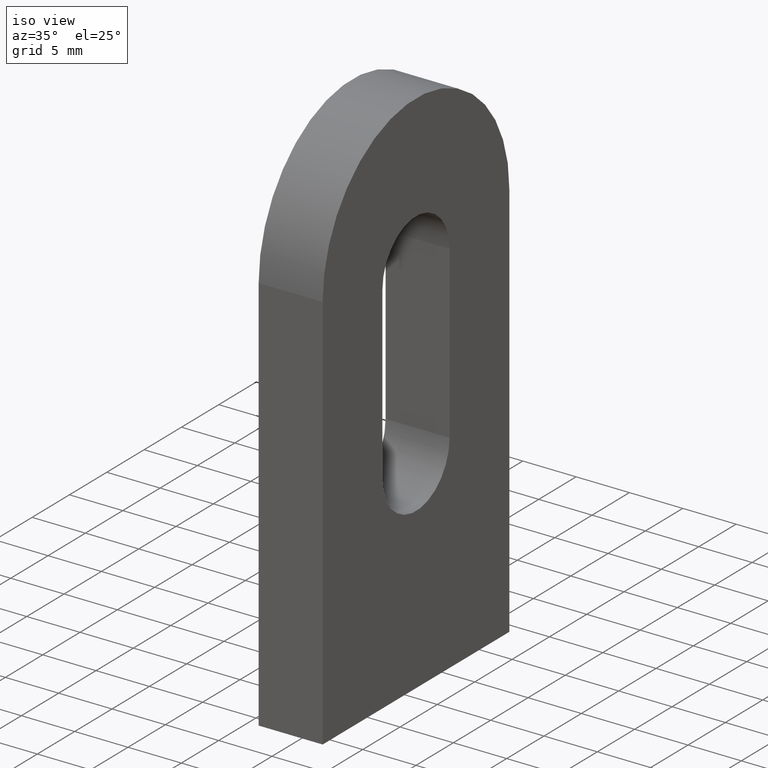
[diagram: clean part render]
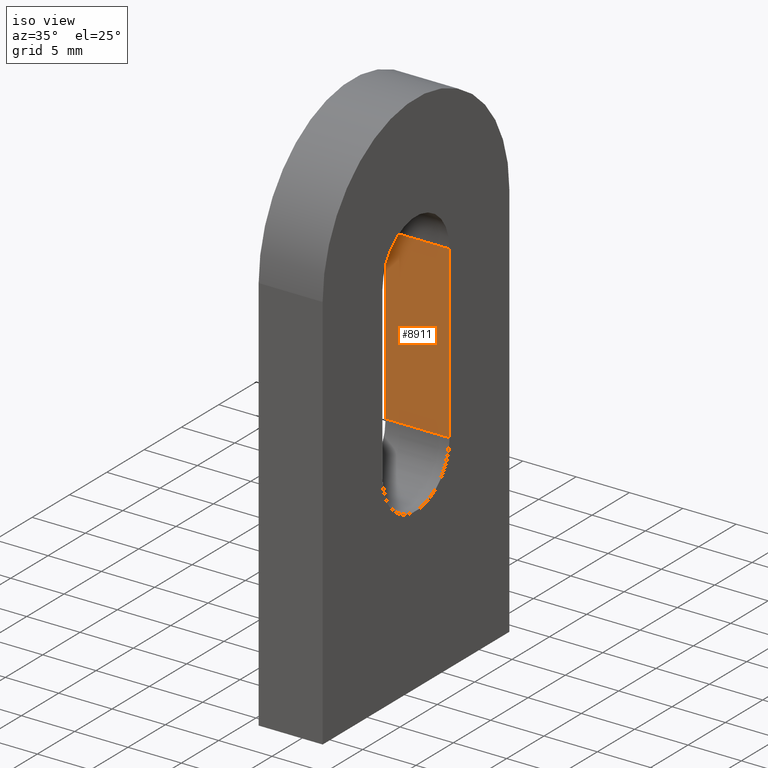
[diagram: same view with one face highlighted and labeled with its STEP entity id]
A machine part, iso view. The second image highlights one B-rep face of the part: STEP entity #8911.
In plain terms, the highlighted planar face has unit normal (0, 1, 0).
Its self-contained STEP definition (entity closure, byte-faithful):
#17 = EDGE_CURVE ( 'NONE', #4176, #4901, #511, .T. ) ;
#457 = CARTESIAN_POINT ( 'NONE',  ( -3.000000000000000000, 4.500000000000004441, 19.49999999999999645 ) ) ;
#511 = LINE ( 'NONE', #1938, #6149 ) ;
#594 = LINE ( 'NONE', #7481, #8027 ) ;
#846 = EDGE_CURVE ( 'NONE', #4176, #2711, #10477, .T. ) ;
#953 = EDGE_LOOP ( 'NONE', ( #3215, #10141, #4609, #2941 ) ) ;
#1054 = CARTESIAN_POINT ( 'NONE',  ( 3.000000000000000000, 4.500000000000002665, 35.50000000000000000 ) ) ;
#1470 = VECTOR ( 'NONE', #10809, 1000.000000000000000 ) ;
#1526 = VECTOR ( 'NONE', #6486, 1000.000000000000000 ) ;
#1938 = CARTESIAN_POINT ( 'NONE',  ( -3.000000000000000000, 4.500000000000004441, 19.49999999999999645 ) ) ;
#2368 = FACE_OUTER_BOUND ( 'NONE', #953, .T. ) ;
#2381 = LINE ( 'NONE', #7337, #1526 ) ;
#2628 = CARTESIAN_POINT ( 'NONE',  ( -3.000000000000000000, 4.500000000000002665, 35.50000000000000000 ) ) ;
#2711 = VERTEX_POINT ( 'NONE', #2628 ) ;
#2941 = ORIENTED_EDGE ( 'NONE', *, *, #17, .T. ) ;
#3215 = ORIENTED_EDGE ( 'NONE', *, *, #5496, .T. ) ;
#3882 = CARTESIAN_POINT ( 'NONE',  ( 3.000000000000000000, 4.500000000000004441, 19.49999999999999645 ) ) ;
#4176 = VERTEX_POINT ( 'NONE', #457 ) ;
#4552 = CARTESIAN_POINT ( 'NONE',  ( -3.000000000000000000, 4.500000000000002665, 35.50000000000000000 ) ) ;
#4609 = ORIENTED_EDGE ( 'NONE', *, *, #846, .F. ) ;
#4901 = VERTEX_POINT ( 'NONE', #3882 ) ;
#5496 = EDGE_CURVE ( 'NONE', #4901, #8398, #594, .T. ) ;
#5576 = PLANE ( 'NONE',  #10270 ) ;
#6149 = VECTOR ( 'NONE', #9198, 1000.000000000000000 ) ;
#6486 = DIRECTION ( 'NONE',  ( 1.000000000000000000, -0.000000000000000000, -0.000000000000000000 ) ) ;
#7337 = CARTESIAN_POINT ( 'NONE',  ( -3.000000000000000000, 4.500000000000002665, 35.50000000000000000 ) ) ;
#7481 = CARTESIAN_POINT ( 'NONE',  ( 3.000000000000000000, 4.500000000000002665, 35.50000000000000000 ) ) ;
#8027 = VECTOR ( 'NONE', #11167, 1000.000000000000000 ) ;
#8399 = EDGE_CURVE ( 'NONE', #2711, #8398, #2381, .T. ) ;
#8398 = VERTEX_POINT ( 'NONE', #1054 ) ;
#8911 = ADVANCED_FACE ( 'NONE', ( #2368 ), #5576, .F. ) ;
#9198 = DIRECTION ( 'NONE',  ( 1.000000000000000000, -0.000000000000000000, -0.000000000000000000 ) ) ;
#9456 = DIRECTION ( 'NONE',  ( 0.000000000000000000, 1.000000000000000000, 1.626303258728256651E-16 ) ) ;
#9984 = CARTESIAN_POINT ( 'NONE',  ( -3.000000000000000000, 4.500000000000002665, 35.50000000000000000 ) ) ;
#10141 = ORIENTED_EDGE ( 'NONE', *, *, #8399, .F. ) ;
#10270 = AXIS2_PLACEMENT_3D ( 'NONE', #9984, #9456, #11518 ) ;
#10477 = LINE ( 'NONE', #4552, #1470 ) ;
#10809 = DIRECTION ( 'NONE',  ( -0.000000000000000000, -1.626303258728256651E-16, 1.000000000000000000 ) ) ;
#11167 = DIRECTION ( 'NONE',  ( -0.000000000000000000, -1.626303258728256651E-16, 1.000000000000000000 ) ) ;
#11518 = DIRECTION ( 'NONE',  ( 0.000000000000000000, -1.626303258728256651E-16, 1.000000000000000000 ) ) ;